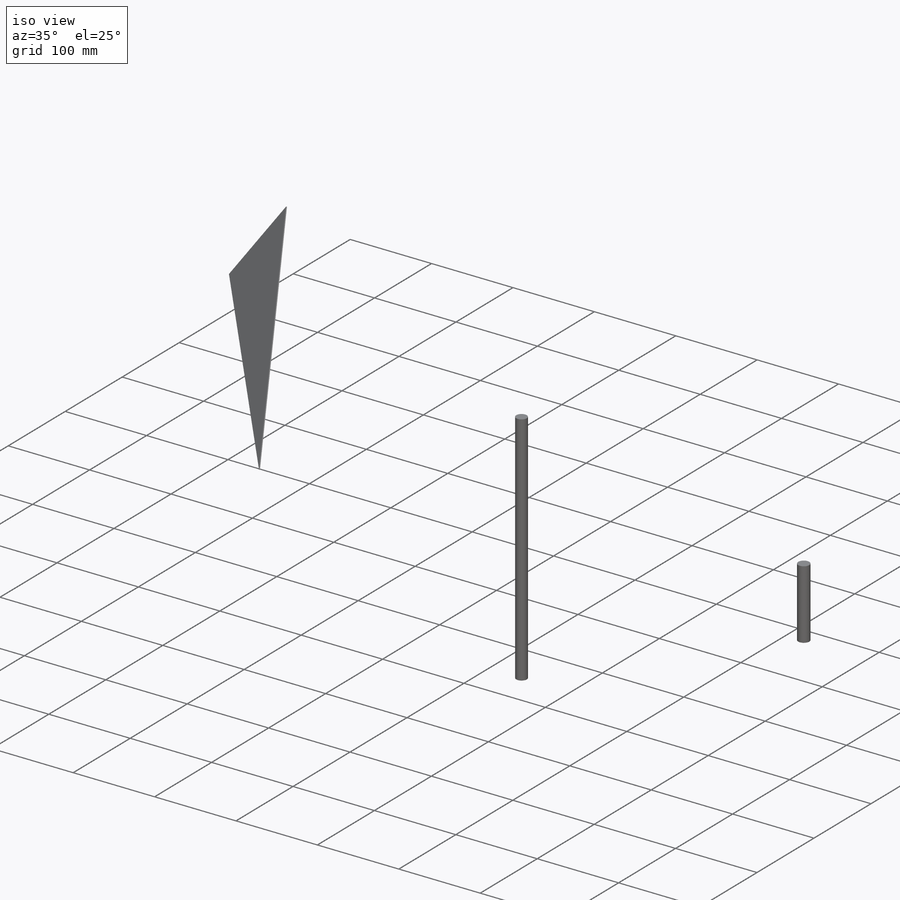
[diagram: iso view]
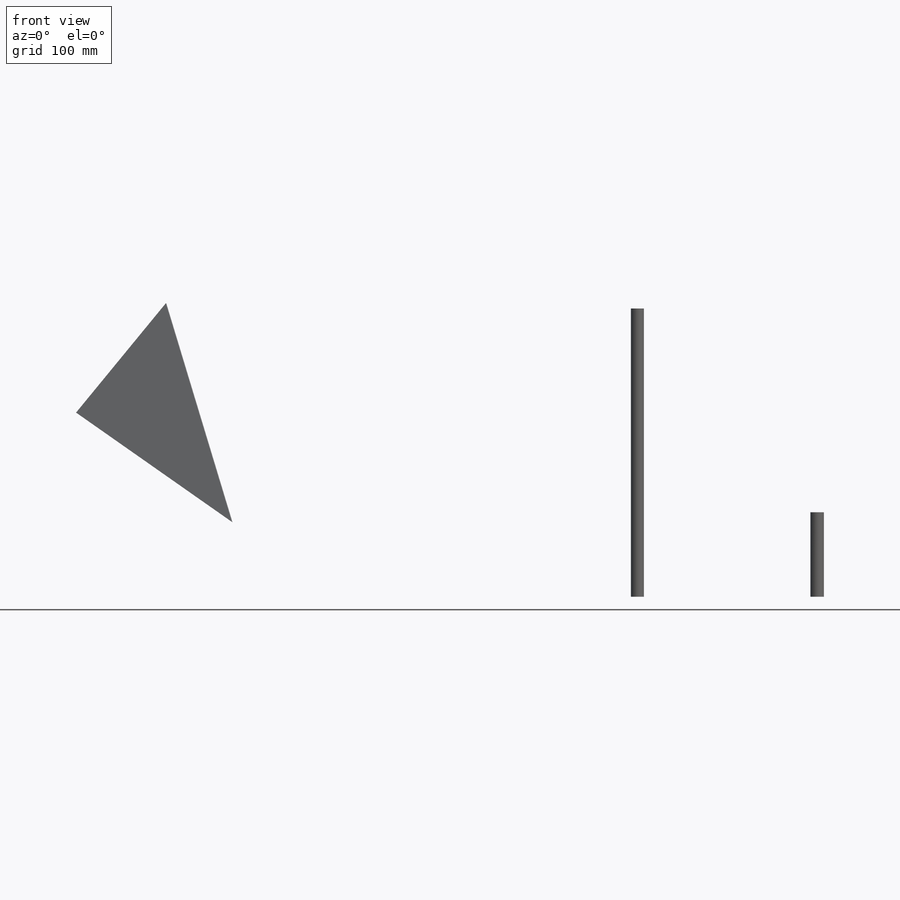
[diagram: front view]
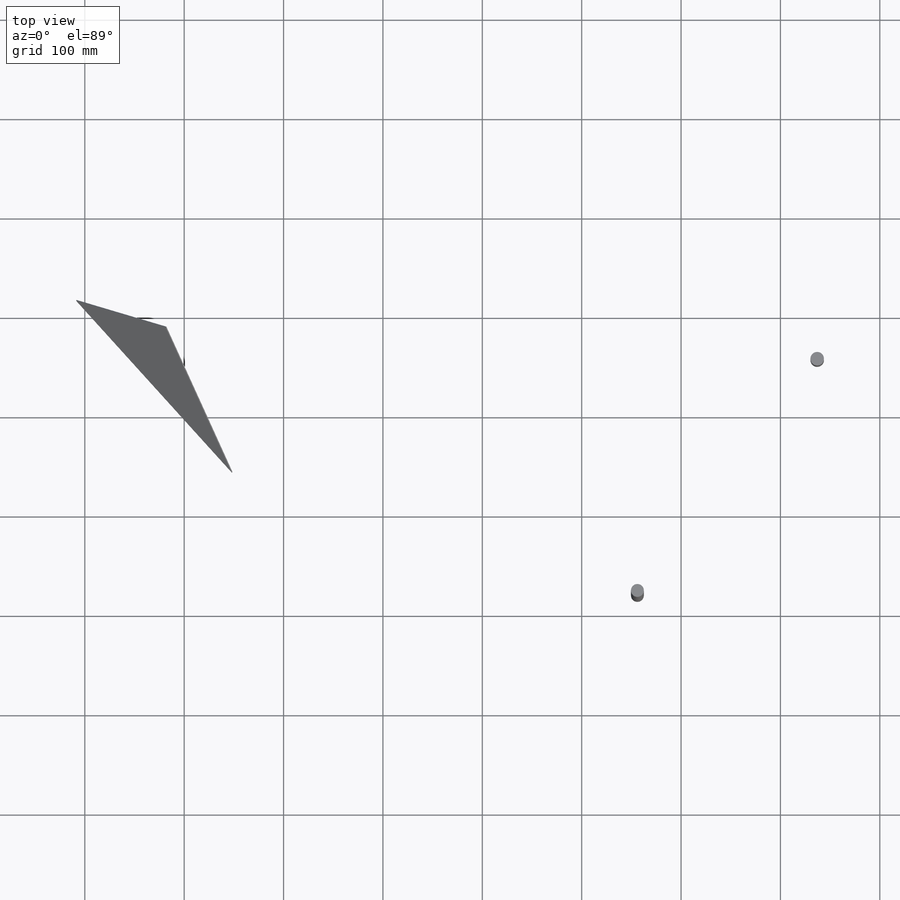
[diagram: top view]
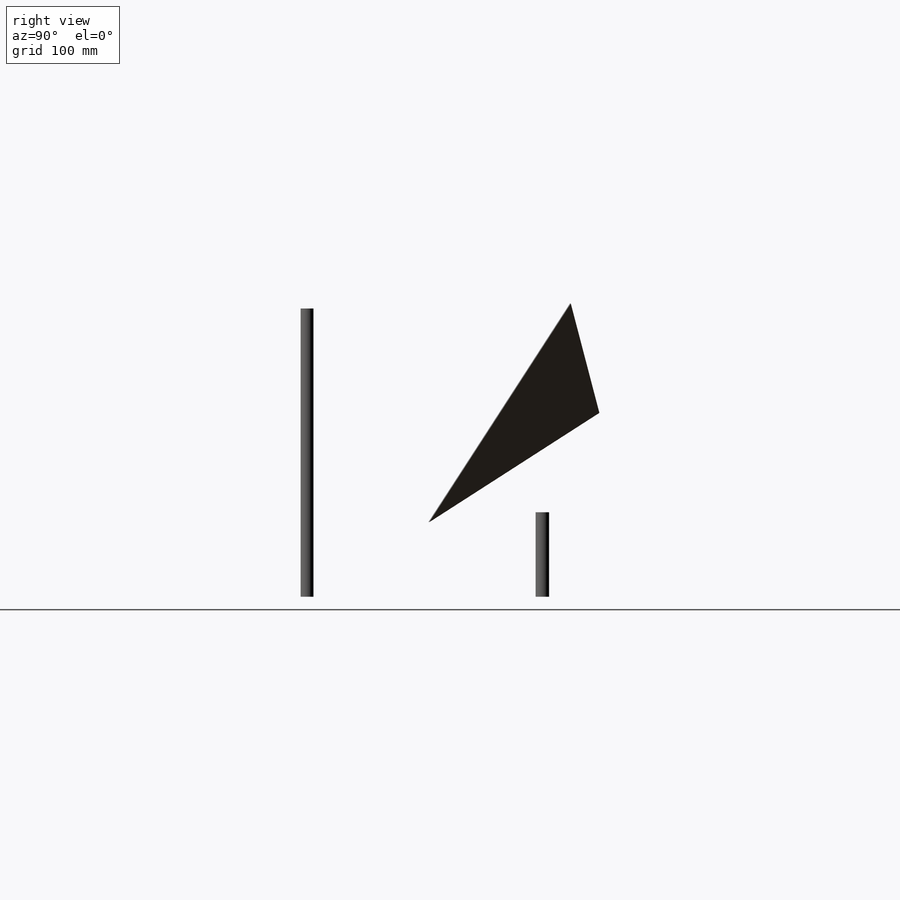
[diagram: right view]
SOLIDWORKS PART (.sldprt)
format: sldprt  version: not decoded by parser v0  size: 4,600,320 bytes
history: native  units: mm
features: sketch x36, plane x11, extrude x4, material x1, revolve x1, sweep x1 (+20 scaffold rows collapsed; 4 parser-record rows omitted)
feature tree (78):
  scaffold x20  (default folders/planes/origin — collapsed)
  material  "Material <not specified>"
  sketch  "Image"
  sketch  "For Loft To Surface"
  sketch  "For Ground Down"
  parser-record x4  (decoder bookkeeping rows leaked as tree rows — omitted from the tree; the rows remain in map.json)
  sketch  "Guide Lines"
  plane  "20"  Offset=20mm
  plane  "30"  Offset=75mm
  plane  "40"  Offset=130mm
  plane  "50"  Offset=185mm
  plane  "60"  Offset=240mm
  plane  "70"  Offset=295mm
  sketch  "s20"
  sketch  "s30"
  sketch  "s40"
  sketch  "s50"
  sketch  "s60"
  sketch  "s70"
  sketch  "3DSketch1"
  sketch  "3DSketch2"
  sketch  "3DSketch3"
  sketch  "3DSketch4"
  sketch  "3DSketch5"
  sketch  "3DSketch6"
  sketch  "3DSketch7"
  sketch  "3DSketch8"
  sketch  "3DSketch9"
  sketch  "3DSketch10"
  sketch  "3DSketch11"
  extrude  "Extrude1"  Depth=50mm
  sketch  "A"
  sketch  "B"
  sketch  "C"
  sketch  "ABC"
  plane  "ABC Plane"
  sketch  "sABC"
  extrude  "ABC Outcrop"  Depth=1mm
  plane  "D-E Cutting Plane"
  sketch  "Sketch1"
  extrude  "G"  Depth=290mm
  sketch  "Sketch2"
  extrude  "F"  Depth=85mm
  sketch  "3DSketch12"
  sketch  "Sketch3"
  plane  "Plane1"
  sketch  "Sketch4"  dims[c1.D1=110.0mm c1.D2=90.0deg c2.D2=10.0mm c2.D3=110.0mm]
  revolve  "Turbine"  Angle=360deg
  plane  "Plane2"
  sketch  "Sketch5"  dims[D1=1.0mm]
  sketch  "Sketch6"
  sweep  "Line of Soght"
  sketch  "Image1"  dims[D1=~273.217433mm]
  plane  "Horizontal Plane through A"
  sketch  "Strike"
  sketch  "Dip"
decode coverage: 8 of 42 modeling features carry decoded parameters
note: ~ marks probable driven/reference dimensions
note: suppression state not decoded; provenance and decode notes live in map.json
